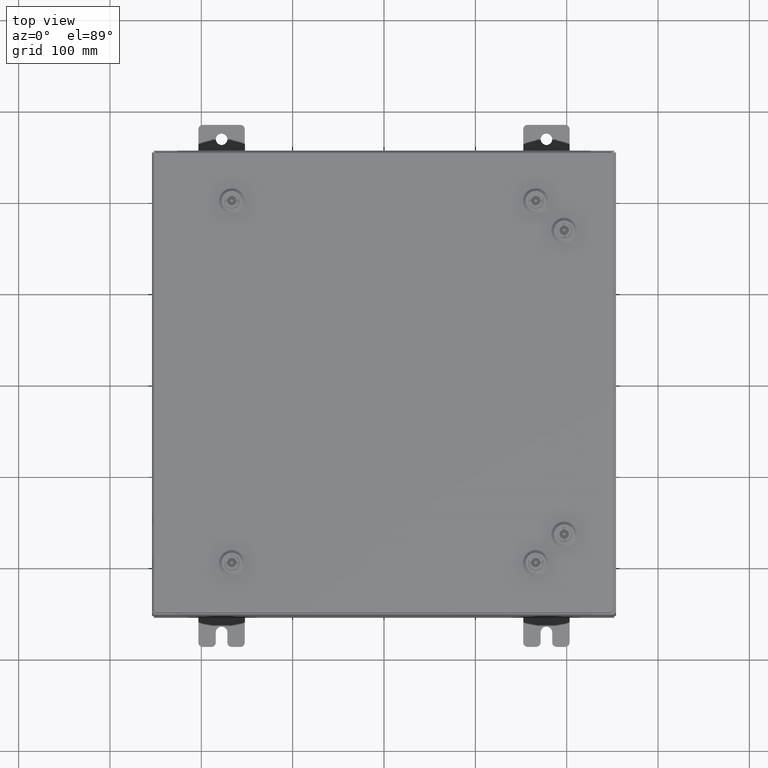
[diagram: clean part render]
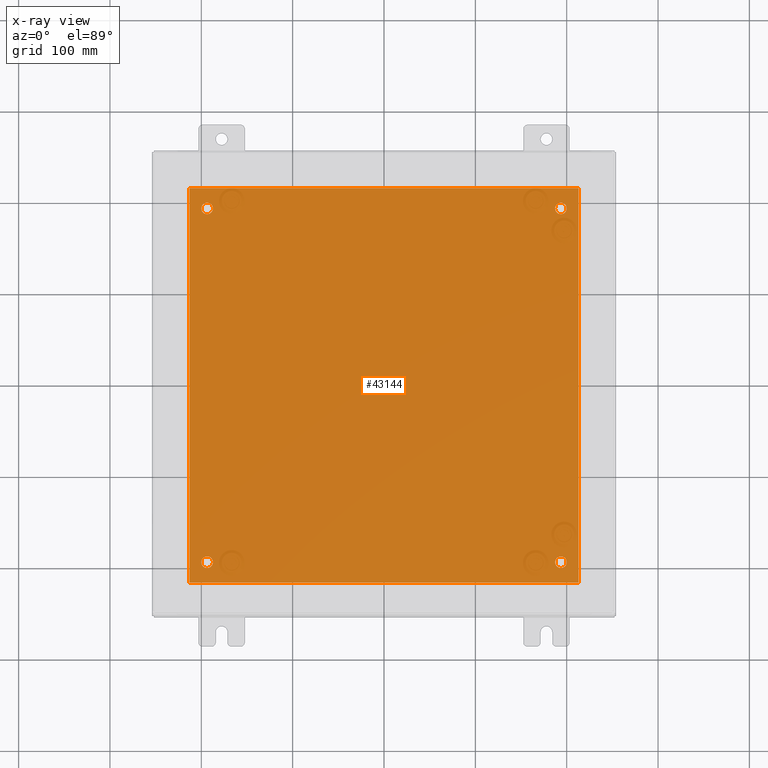
[diagram: x-ray — body ghosted, one internal face saturated and labeled with its STEP entity id]
A machine part, top view, then the same camera in x-ray: the body is ghosted and one INTERNAL B-rep face — a face not visible from any outside direction — is saturated and labeled: STEP entity #43144.
In plain terms, the highlighted planar face has unit normal (0, 0, -1).
Its self-contained STEP definition (entity closure, byte-faithful):
#456 = CARTESIAN_POINT ( 'NONE',  ( -8.382999999999999100, 8.500000000000000000, -0.1039999999999997600 ) ) ;
#1916 = VERTEX_POINT ( 'NONE', #34331 ) ;
#1991 = AXIS2_PLACEMENT_3D ( 'NONE', #6030, #40374, #10987 ) ;
#2490 = CARTESIAN_POINT ( 'NONE',  ( 8.383000000000000900, 8.500000000000000000, -0.1040000000000000400 ) ) ;
#2720 = VERTEX_POINT ( 'NONE', #50266 ) ;
#2791 = EDGE_CURVE ( 'NONE', #25678, #35693, #50165, .T. ) ;
#2819 = EDGE_LOOP ( 'NONE', ( #43766, #17441 ) ) ;
#2844 = VERTEX_POINT ( 'NONE', #16650 ) ;
#3097 = AXIS2_PLACEMENT_3D ( 'NONE', #14249, #48527, #19185 ) ;
#3159 = CARTESIAN_POINT ( 'NONE',  ( 7.375000000000003600, -7.625000000000000900, -0.1040000000000000400 ) ) ;
#6030 = CARTESIAN_POINT ( 'NONE',  ( 7.625000000000001800, -7.625000000000000900, -0.1040000000000000400 ) ) ;
#6722 = AXIS2_PLACEMENT_3D ( 'NONE', #22822, #57014, #27760 ) ;
#8358 = EDGE_LOOP ( 'NONE', ( #63063, #28465 ) ) ;
#9069 = CIRCLE ( 'NONE', #51665, 0.2499999999999987000 ) ;
#9464 = CARTESIAN_POINT ( 'NONE',  ( 0.0000000000000000000, 0.0000000000000000000, -0.1040000000000000400 ) ) ;
#10291 = VERTEX_POINT ( 'NONE', #3159 ) ;
#10367 = CIRCLE ( 'NONE', #28474, 0.2499999999999998100 ) ;
#10731 = AXIS2_PLACEMENT_3D ( 'NONE', #21334, #55511, #26267 ) ;
#10987 = DIRECTION ( 'NONE',  ( -1.000000000000000000, 0.0000000000000000000, 0.0000000000000000000 ) ) ;
#11446 = EDGE_CURVE ( 'NONE', #2844, #42920, #25733, .T. ) ;
#12621 = CIRCLE ( 'NONE', #34912, 0.2499999999999987000 ) ;
#12691 = VECTOR ( 'NONE', #47522, 39.37007874015748100 ) ;
#13626 = ORIENTED_EDGE ( 'NONE', *, *, #42603, .F. ) ;
#14249 = CARTESIAN_POINT ( 'NONE',  ( -7.625000000000001800, 7.625000000000000900, -0.1040000000000000400 ) ) ;
#14425 = CIRCLE ( 'NONE', #1991, 0.2499999999999987000 ) ;
#14427 = EDGE_CURVE ( 'NONE', #29045, #1916, #38616, .T. ) ;
#14468 = DIRECTION ( 'NONE',  ( -1.000000000000000000, 0.0000000000000000000, -0.0000000000000000000 ) ) ;
#15012 = DIRECTION ( 'NONE',  ( -0.0000000000000000000, -0.0000000000000000000, 1.000000000000000000 ) ) ;
#15726 = DIRECTION ( 'NONE',  ( 0.0000000000000000000, -1.000000000000000000, 0.0000000000000000000 ) ) ;
#16650 = CARTESIAN_POINT ( 'NONE',  ( -8.382999999999999100, -8.499999999999998200, -0.1039999999999997600 ) ) ;
#17441 = ORIENTED_EDGE ( 'NONE', *, *, #14427, .T. ) ;
#17710 = CARTESIAN_POINT ( 'NONE',  ( 8.383000000000000900, -8.499999999999998200, -0.1040000000000000400 ) ) ;
#17744 = CARTESIAN_POINT ( 'NONE',  ( -7.875000000000001800, -7.625000000000000900, -0.1040000000000000400 ) ) ;
#19185 = DIRECTION ( 'NONE',  ( -1.000000000000000000, 0.0000000000000000000, 0.0000000000000000000 ) ) ;
#19574 = CARTESIAN_POINT ( 'NONE',  ( 8.383000000000000900, -8.499999999999998200, -0.1039999999999997600 ) ) ;
#19590 = CARTESIAN_POINT ( 'NONE',  ( 7.625000000000001800, 7.625000000000000900, -0.1040000000000000400 ) ) ;
#21307 = EDGE_CURVE ( 'NONE', #1916, #29045, #9069, .T. ) ;
#21334 = CARTESIAN_POINT ( 'NONE',  ( -7.625000000000001800, -7.625000000000000900, -0.1040000000000000400 ) ) ;
#21531 = DIRECTION ( 'NONE',  ( -0.0000000000000000000, -0.0000000000000000000, 1.000000000000000000 ) ) ;
#21728 = ORIENTED_EDGE ( 'NONE', *, *, #50873, .F. ) ;
#21912 = LINE ( 'NONE', #49433, #46477 ) ;
#22549 = EDGE_CURVE ( 'NONE', #10291, #53527, #14425, .T. ) ;
#22822 = CARTESIAN_POINT ( 'NONE',  ( 7.625000000000001800, 7.625000000000000900, -0.1040000000000000400 ) ) ;
#24514 = DIRECTION ( 'NONE',  ( -1.000000000000000000, 0.0000000000000000000, 0.0000000000000000000 ) ) ;
#24952 = EDGE_CURVE ( 'NONE', #47849, #2720, #10367, .T. ) ;
#25473 = FACE_OUTER_BOUND ( 'NONE', #49635, .T. ) ;
#25678 = VERTEX_POINT ( 'NONE', #17744 ) ;
#25733 = LINE ( 'NONE', #27778, #12691 ) ;
#26267 = DIRECTION ( 'NONE',  ( -1.000000000000000000, 0.0000000000000000000, 0.0000000000000000000 ) ) ;
#27042 = FACE_BOUND ( 'NONE', #57118, .T. ) ;
#27760 = DIRECTION ( 'NONE',  ( -1.000000000000000000, 0.0000000000000000000, 0.0000000000000000000 ) ) ;
#27778 = CARTESIAN_POINT ( 'NONE',  ( -8.500000000000000000, -8.499999999999998200, -0.1040000000000000400 ) ) ;
#28465 = ORIENTED_EDGE ( 'NONE', *, *, #61049, .T. ) ;
#28474 = AXIS2_PLACEMENT_3D ( 'NONE', #57746, #28502, #62703 ) ;
#28502 = DIRECTION ( 'NONE',  ( -0.0000000000000000000, -0.0000000000000000000, 1.000000000000000000 ) ) ;
#29045 = VERTEX_POINT ( 'NONE', #57112 ) ;
#29423 = DIRECTION ( 'NONE',  ( 0.0000000000000000000, 1.000000000000000000, 0.0000000000000000000 ) ) ;
#33083 = CARTESIAN_POINT ( 'NONE',  ( -7.375000000000001800, 7.625000000000000900, -0.1040000000000000400 ) ) ;
#33999 = PLANE ( 'NONE',  #60834 ) ;
#34164 = AXIS2_PLACEMENT_3D ( 'NONE', #50903, #21531, #55750 ) ;
#34331 = CARTESIAN_POINT ( 'NONE',  ( 7.875000000000000900, 7.625000000000000900, -0.1040000000000000400 ) ) ;
#34912 = AXIS2_PLACEMENT_3D ( 'NONE', #44363, #15012, #49291 ) ;
#35693 = VERTEX_POINT ( 'NONE', #59227 ) ;
#38146 = EDGE_CURVE ( 'NONE', #42920, #38820, #54703, .T. ) ;
#38555 = FACE_BOUND ( 'NONE', #8358, .T. ) ;
#38616 = CIRCLE ( 'NONE', #6722, 0.2499999999999987000 ) ;
#38820 = VERTEX_POINT ( 'NONE', #2490 ) ;
#39342 = LINE ( 'NONE', #40142, #52303 ) ;
#40058 = FACE_BOUND ( 'NONE', #48235, .T. ) ;
#40142 = CARTESIAN_POINT ( 'NONE',  ( -8.382999999999999100, 8.500000000000000000, -0.1039999999999997600 ) ) ;
#40374 = DIRECTION ( 'NONE',  ( -0.0000000000000000000, -0.0000000000000000000, 1.000000000000000000 ) ) ;
#41894 = VERTEX_POINT ( 'NONE', #456 ) ;
#41940 = ORIENTED_EDGE ( 'NONE', *, *, #54457, .T. ) ;
#42603 = EDGE_CURVE ( 'NONE', #41894, #2844, #39342, .T. ) ;
#42920 = VERTEX_POINT ( 'NONE', #17710 ) ;
#43144 = ADVANCED_FACE ( 'NONE', ( #27042, #40058, #51528, #38555, #25473 ), #33999, .T. ) ;
#43766 = ORIENTED_EDGE ( 'NONE', *, *, #21307, .T. ) ;
#43812 = DIRECTION ( 'NONE',  ( 0.0000000000000000000, 0.0000000000000000000, -1.000000000000000000 ) ) ;
#44147 = CARTESIAN_POINT ( 'NONE',  ( 7.875000000000000900, -7.625000000000000900, -0.1040000000000000400 ) ) ;
#44363 = CARTESIAN_POINT ( 'NONE',  ( 7.625000000000001800, -7.625000000000000900, -0.1040000000000000400 ) ) ;
#46357 = CIRCLE ( 'NONE', #34164, 0.2499999999999998100 ) ;
#46477 = VECTOR ( 'NONE', #54290, 39.37007874015748100 ) ;
#47041 = ORIENTED_EDGE ( 'NONE', *, *, #38146, .F. ) ;
#47522 = DIRECTION ( 'NONE',  ( 1.000000000000000000, 0.0000000000000000000, 0.0000000000000000000 ) ) ;
#47849 = VERTEX_POINT ( 'NONE', #33083 ) ;
#47926 = ORIENTED_EDGE ( 'NONE', *, *, #52401, .T. ) ;
#48235 = EDGE_LOOP ( 'NONE', ( #47926, #63082 ) ) ;
#48527 = DIRECTION ( 'NONE',  ( -0.0000000000000000000, -0.0000000000000000000, 1.000000000000000000 ) ) ;
#49030 = CIRCLE ( 'NONE', #3097, 0.2499999999999998100 ) ;
#49291 = DIRECTION ( 'NONE',  ( -1.000000000000000000, 0.0000000000000000000, 0.0000000000000000000 ) ) ;
#49433 = CARTESIAN_POINT ( 'NONE',  ( -8.500000000000000000, 8.500000000000000000, -0.1040000000000000400 ) ) ;
#49635 = EDGE_LOOP ( 'NONE', ( #53058, #13626, #21728, #47041 ) ) ;
#50165 = CIRCLE ( 'NONE', #10731, 0.2499999999999998100 ) ;
#50266 = CARTESIAN_POINT ( 'NONE',  ( -7.875000000000001800, 7.625000000000000900, -0.1040000000000000400 ) ) ;
#50873 = EDGE_CURVE ( 'NONE', #38820, #41894, #21912, .T. ) ;
#50903 = CARTESIAN_POINT ( 'NONE',  ( -7.625000000000001800, -7.625000000000000900, -0.1040000000000000400 ) ) ;
#51528 = FACE_BOUND ( 'NONE', #2819, .T. ) ;
#51665 = AXIS2_PLACEMENT_3D ( 'NONE', #19590, #53805, #24514 ) ;
#51687 = VECTOR ( 'NONE', #29423, 39.37007874015748100 ) ;
#52303 = VECTOR ( 'NONE', #15726, 39.37007874015748100 ) ;
#52401 = EDGE_CURVE ( 'NONE', #53527, #10291, #12621, .T. ) ;
#53058 = ORIENTED_EDGE ( 'NONE', *, *, #11446, .F. ) ;
#53527 = VERTEX_POINT ( 'NONE', #44147 ) ;
#53805 = DIRECTION ( 'NONE',  ( -0.0000000000000000000, -0.0000000000000000000, 1.000000000000000000 ) ) ;
#54290 = DIRECTION ( 'NONE',  ( -1.000000000000000000, -0.0000000000000000000, -0.0000000000000000000 ) ) ;
#54457 = EDGE_CURVE ( 'NONE', #35693, #25678, #46357, .T. ) ;
#54703 = LINE ( 'NONE', #19574, #51687 ) ;
#54753 = ORIENTED_EDGE ( 'NONE', *, *, #2791, .T. ) ;
#55511 = DIRECTION ( 'NONE',  ( -0.0000000000000000000, -0.0000000000000000000, 1.000000000000000000 ) ) ;
#55750 = DIRECTION ( 'NONE',  ( -1.000000000000000000, 0.0000000000000000000, 0.0000000000000000000 ) ) ;
#57014 = DIRECTION ( 'NONE',  ( -0.0000000000000000000, -0.0000000000000000000, 1.000000000000000000 ) ) ;
#57112 = CARTESIAN_POINT ( 'NONE',  ( 7.375000000000003600, 7.625000000000000900, -0.1040000000000000400 ) ) ;
#57118 = EDGE_LOOP ( 'NONE', ( #41940, #54753 ) ) ;
#57746 = CARTESIAN_POINT ( 'NONE',  ( -7.625000000000001800, 7.625000000000000900, -0.1040000000000000400 ) ) ;
#59227 = CARTESIAN_POINT ( 'NONE',  ( -7.375000000000001800, -7.625000000000000900, -0.1040000000000000400 ) ) ;
#60834 = AXIS2_PLACEMENT_3D ( 'NONE', #9464, #43812, #14468 ) ;
#61049 = EDGE_CURVE ( 'NONE', #2720, #47849, #49030, .T. ) ;
#62703 = DIRECTION ( 'NONE',  ( -1.000000000000000000, 0.0000000000000000000, 0.0000000000000000000 ) ) ;
#63063 = ORIENTED_EDGE ( 'NONE', *, *, #24952, .T. ) ;
#63082 = ORIENTED_EDGE ( 'NONE', *, *, #22549, .T. ) ;